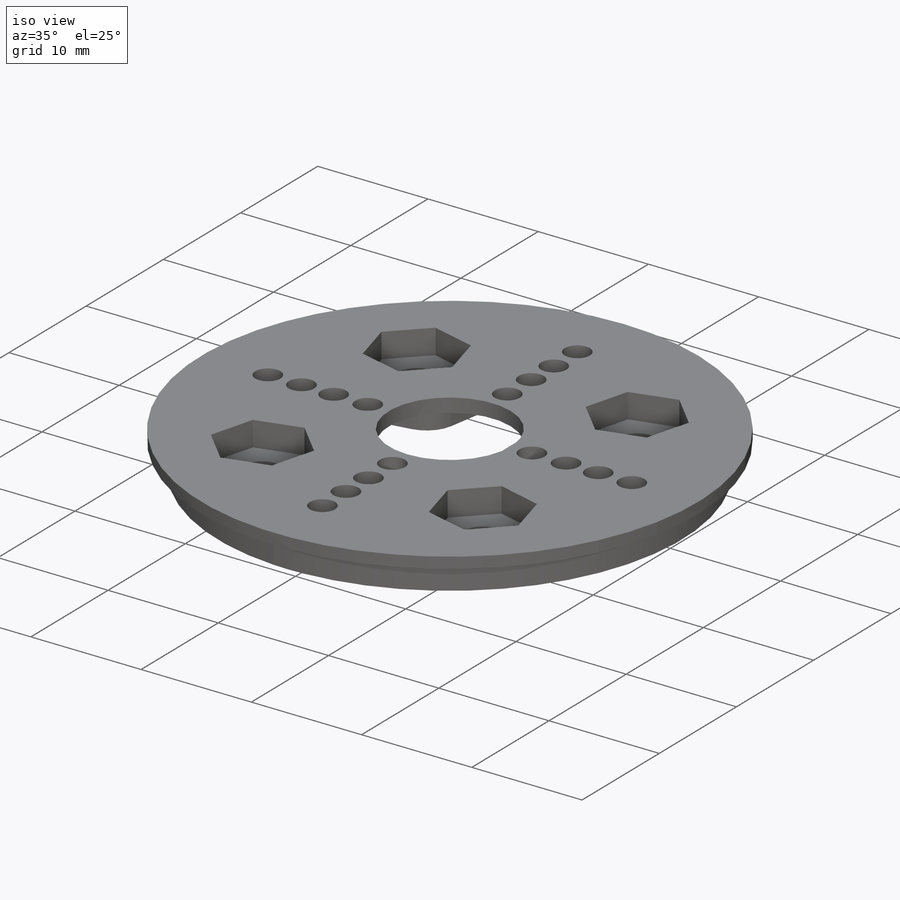
[diagram: iso view]
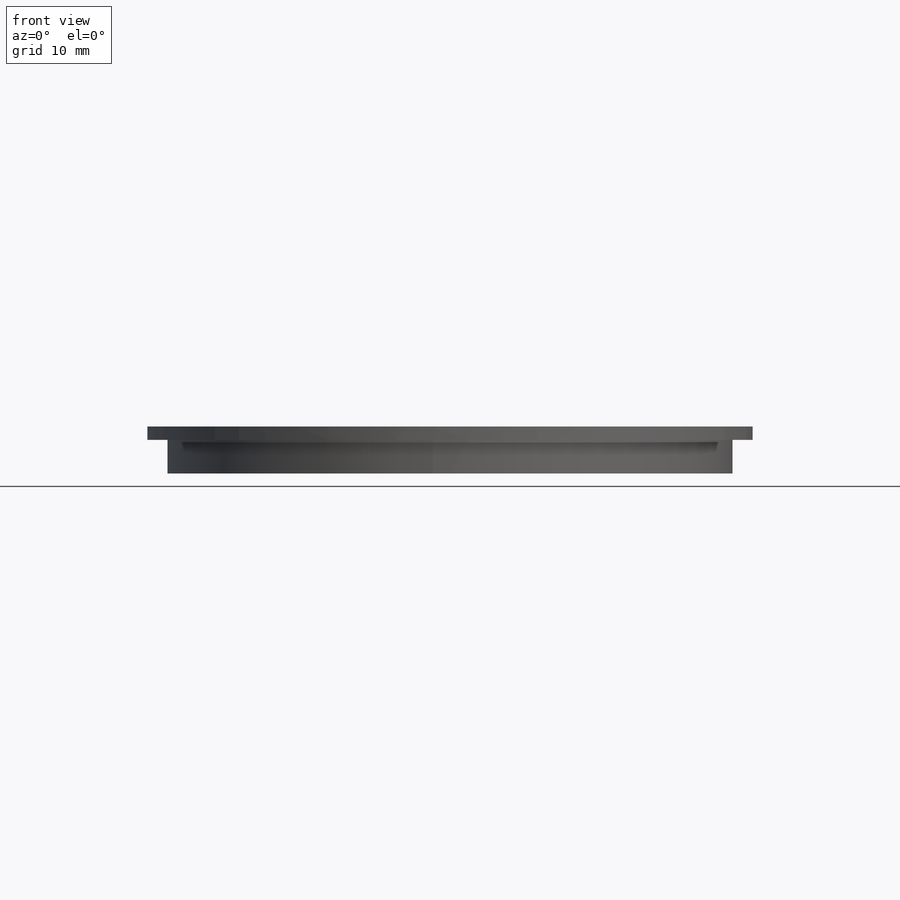
[diagram: front view]
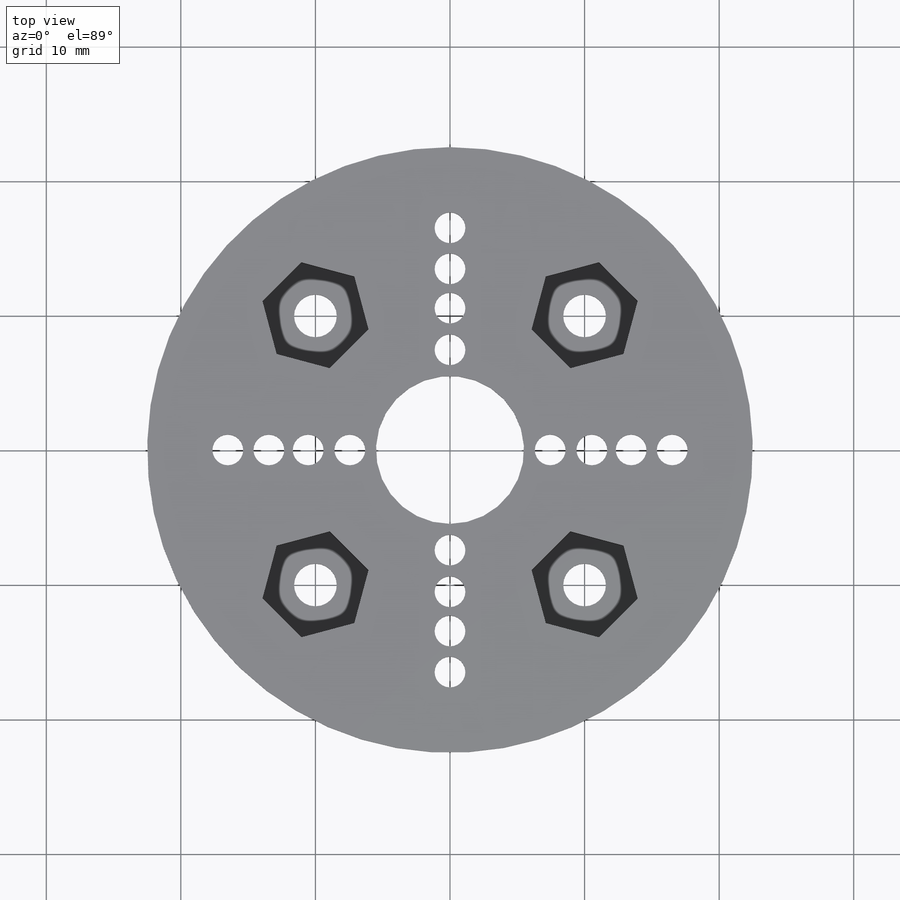
[diagram: top view]
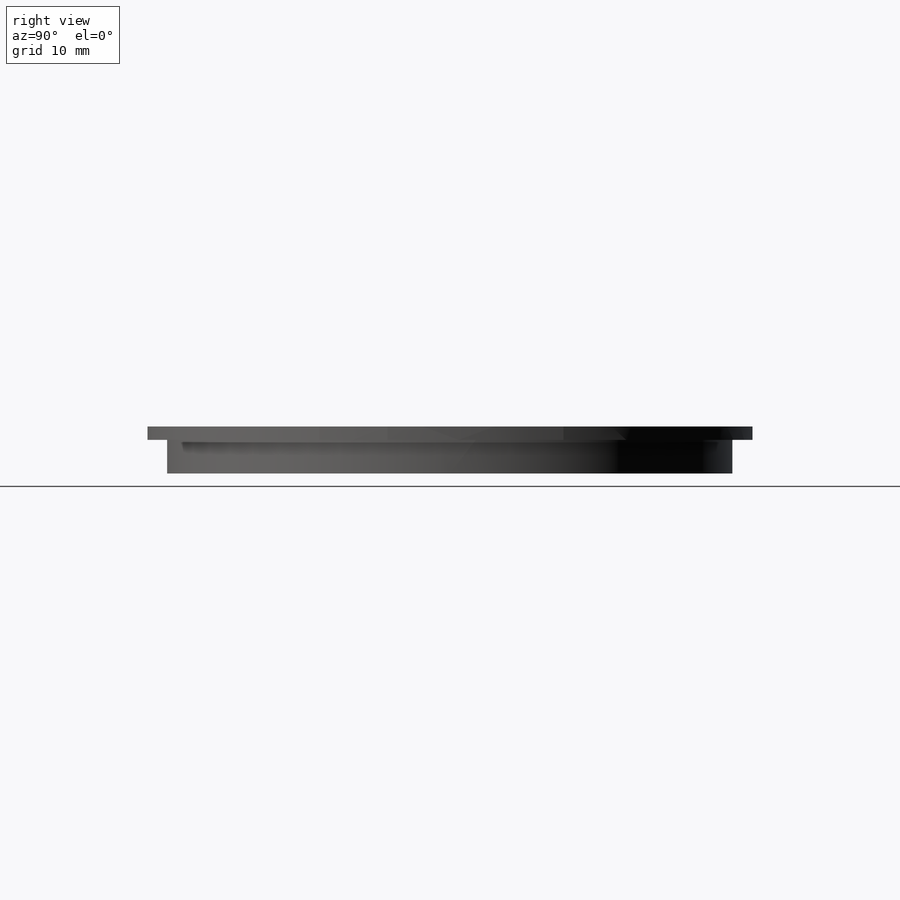
[diagram: right view]
SOLIDWORKS PART (.sldprt)
format: sldprt  version: not decoded by parser v0  size: 318,464 bytes
history: native  units: mm
features: sketch x5, cut_extrude x3, material x1, extrude x1, revolve x1 (+12 scaffold rows collapsed)
feature tree (23):
  scaffold x12  (default folders/planes/origin — collapsed)
  material  "Material <not specified>"
  sketch  "Sketch2"  dims[D1=~21.439731mm]
  extrude  "Boss-Extrude1"  Depth=3.5mm
  sketch  "Sketch1"  dims[c1.D1=~1.876065mm c1.D3=~2.439593mm c1.D2=19.7mm c2.D1=2.5mm c2.D2=2.5mm c2.D3=7.445mm c2.D4=~9.136892mm c2.D5=10.54mm c3.D4=10.54mm c3.D5=10.54mm c3.D3=20.0mm c3.D1=4.0]
  cut_extrude  "Cut-Extrude1"  Depth=2.25mm
  sketch  "Sketch4"  dims[c1.D1=~2.006354mm c1.D2=2.1336mm c2.D1=4.0]
  cut_extrude  "Cut-Extrude2"  [1 undecoded]
  sketch  "Sketch5"  dims[D1=4.08mm]
  cut_extrude  "Cut-Extrude4"  Depth=2.25mm
  sketch  "Sketch6"  dims[D1=1.0mm D2=1.5mm]
  revolve  "Revolve1"  Angle=360deg
decode coverage: 9 of 10 modeling features carry decoded parameters
note: ~ marks probable driven/reference dimensions
note: 1 parameter value undecoded
note: suppression state not decoded; provenance and decode notes live in map.json
